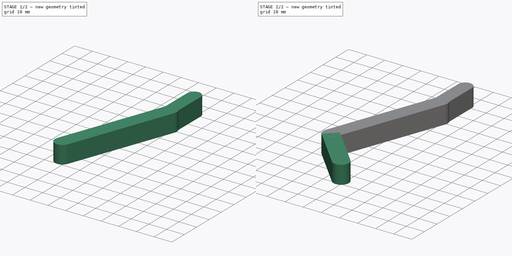
[diagram: build sequence overview — one tinted view per stage of 2, left to right]
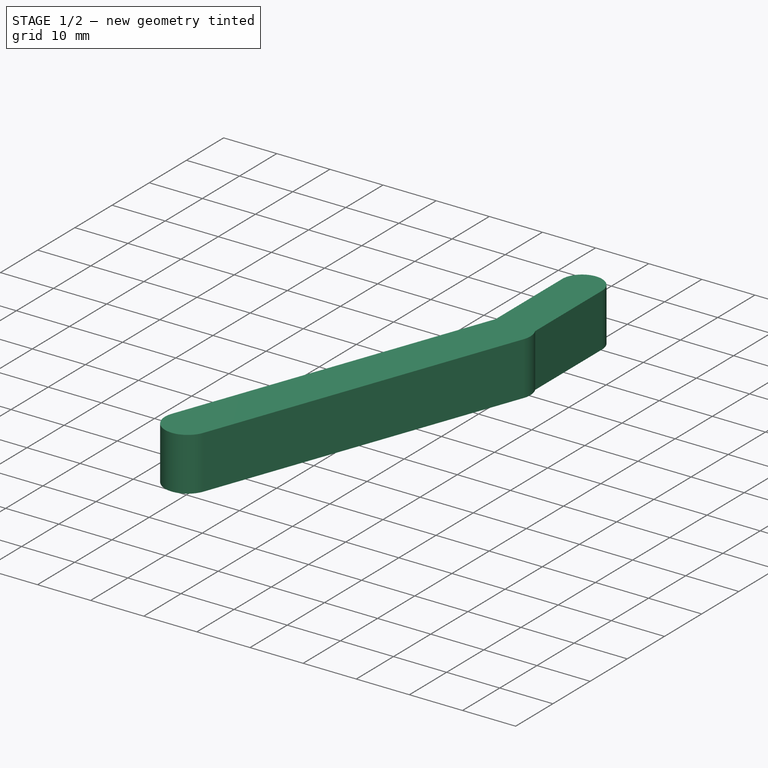
[diagram: stage 1 of 2 — iso view after this stage's code; geometry added in this stage tinted green]
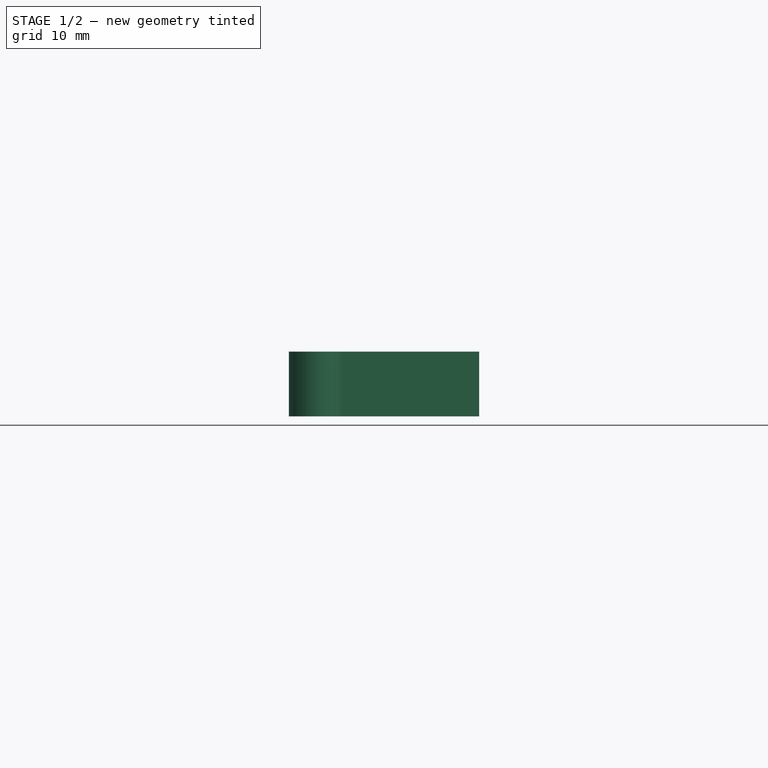
[diagram: stage 1 of 2 — front view after this stage's code; geometry added in this stage tinted green]
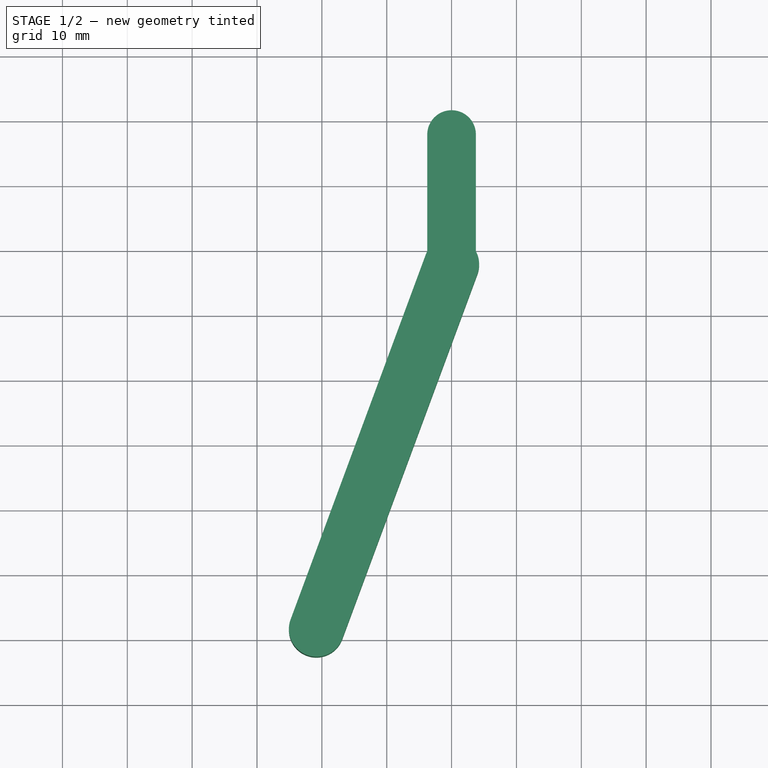
[diagram: stage 1 of 2 — top view after this stage's code; geometry added in this stage tinted green]
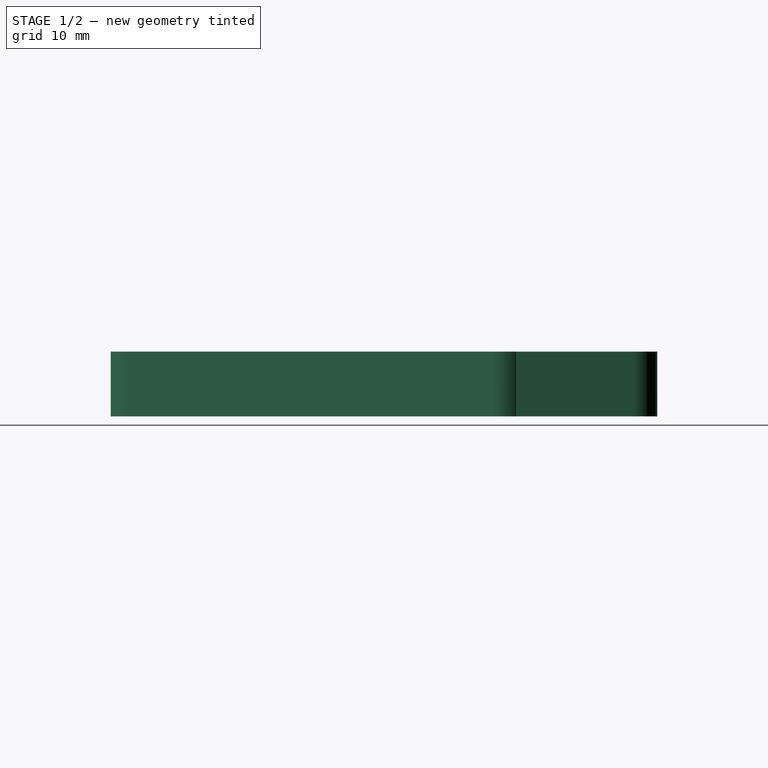
[diagram: stage 1 of 2 — right view after this stage's code; geometry added in this stage tinted green]
FCSTD DOCUMENT  (FreeCAD 0.19R)
Label: PistonAnimation
License: All rights reserved
LicenseURL: http://en.wikipedia.org/wiki/All_rights_reserved
objects: Sketcher::SketchObject×4, Part::Part2DObjectPython×3, PartDesign::Pad×3, PartDesign::Body×3
note: 16 computed .brp shape members not serialized (recipe doc carries the construction recipe); baked Part::Feature solids carry a one-line shape summary decoded from their .brp

FEATURE [PartDesign::Body] Body  label="Cam"
  Group = -> [Sketch001,Clone2D,Pad]
  Origin = -> Origin
  Tip = -> Pad
FEATURE [PartDesign::Pad] Pad001
  Direction = (1,1,1)
  Length = 10
  Length2 = 100
  Profile = -> Sketch002
  Refine = true
  Type = 0
FEATURE [PartDesign::Body] Body001  label="Rod"
  Group = -> [Sketch002,Clone2D001,Pad001]
  Origin = -> Origin001
  Tip = -> Pad001
FEATURE [PartDesign::Pad] Pad002
  Direction = (1,1,1)
  Length = 10
  Length2 = 100
  Profile = -> Sketch003
  Refine = true
  Type = 0
FEATURE [PartDesign::Body] Body002  label="link"
  Group = -> [Sketch003,Clone2D002,Pad002]
  Origin = -> Origin002
  Tip = -> Pad002
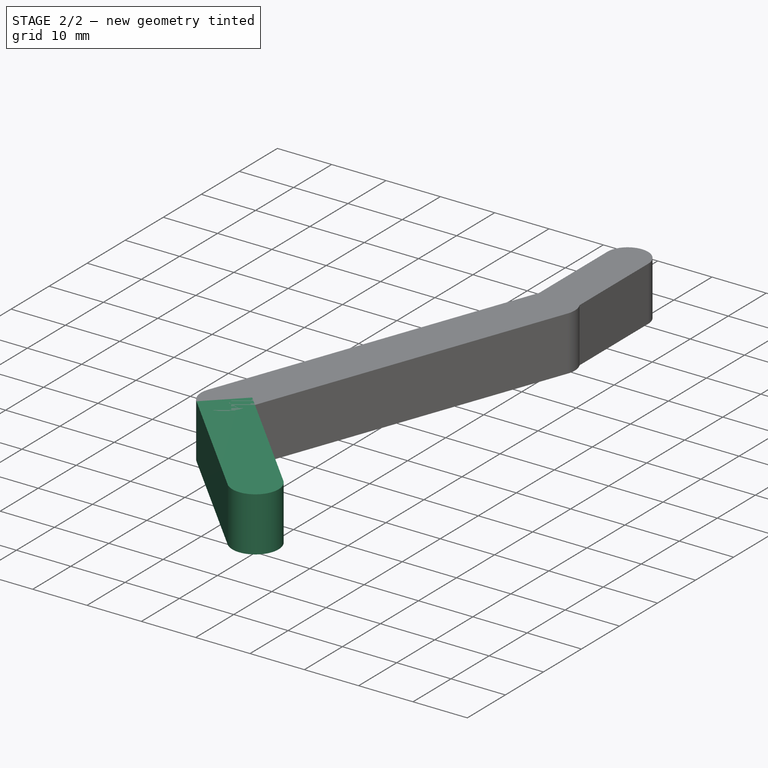
[diagram: stage 2 of 2 — iso view after this stage's code; geometry added in this stage tinted green]
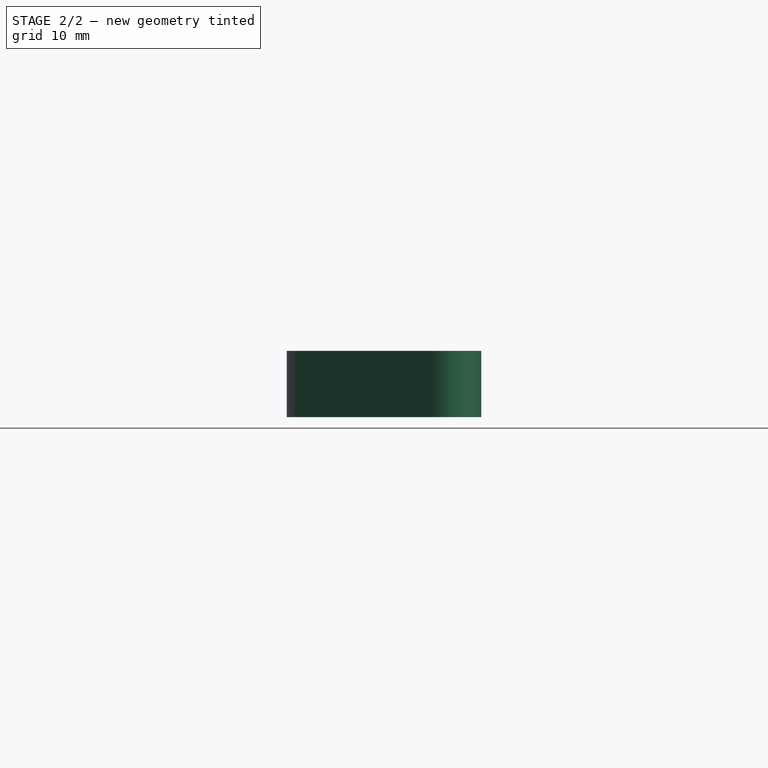
[diagram: stage 2 of 2 — front view after this stage's code; geometry added in this stage tinted green]
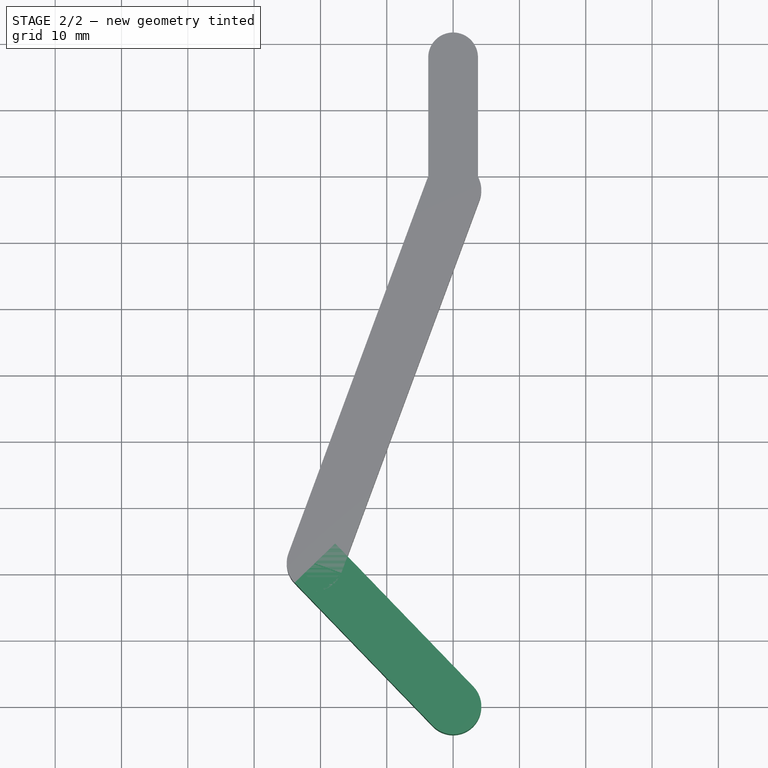
[diagram: stage 2 of 2 — top view after this stage's code; geometry added in this stage tinted green]
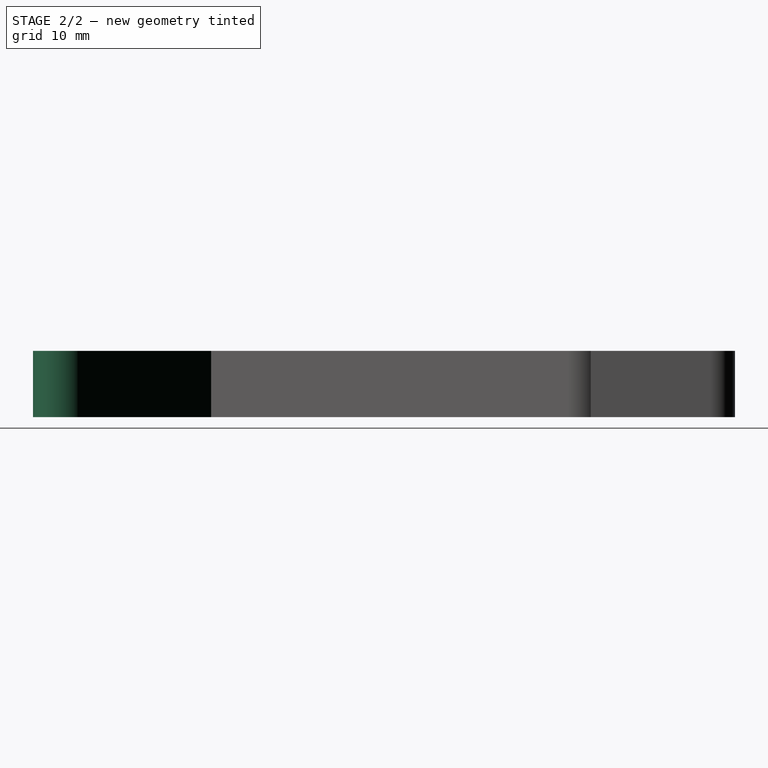
[diagram: stage 2 of 2 — right view after this stage's code; geometry added in this stage tinted green]
FEATURE [Sketcher::SketchObject] Sketch  label="Master"
  FullyConstrained = false
  sketch-geometry (4):
    g0: LineSegment StartX=0 StartY=0 StartZ=0 EndX=-20.8398 EndY=21.5802 EndZ=0
    g1: LineSegment StartX=-20.8398 StartY=21.5802 StartZ=0 EndX=0 EndY=77.8448 EndZ=0
    g2: LineSegment StartX=0 StartY=0 StartZ=0 EndX=0 EndY=119.163 EndZ=0
    g3: LineSegment StartX=0 StartY=77.8448 StartZ=0 EndX=0 EndY=97.8448 EndZ=0
  constraints (11):
    c: Coincident(g0,g-1)
    c: Distance(g0) = 30
    c: Coincident(g1,g0)
    c: Distance(g1) = 60
    c: PointOnObject(g2,g-2)
    c: Coincident(g0,g2)
    c: PointOnObject(g1,g2)
    c: Coincident(g3,g1)
    c: Distance(g3) = 20
    c: Vertical(g3)
    c: Angle(g2,g0) = 0.767945
FEATURE [Part::Part2DObjectPython] Clone2D  label="Master (2D)"  # Draft 2D object (typed FeaturePython)
  Fuse = false
  Objects = -> [Sketch]
  Scale = (1,1,1)
FEATURE [Sketcher::SketchObject] Sketch001
  ExternalGeometry = -> [Clone2D]
  FullyConstrained = true
  MapMode = 5
  Support = -> [XY_Plane]
  sketch-geometry (4):
    g0: ArcOfCircle CenterX=-20.8398 CenterY=21.5802 CenterZ=0 NormalX=0 NormalY=0 NormalZ=1 AngleXU=0 Radius=4.25 StartAngle=0.767945 EndAngle=3.90954
    g1: ArcOfCircle CenterX=0 CenterY=0 CenterZ=0 NormalX=0 NormalY=0 NormalZ=1 AngleXU=0 Radius=4.25 StartAngle=3.90954 EndAngle=7.05113
    g2: LineSegment StartX=-23.8969 StartY=18.6279 StartZ=0 EndX=-3.05719 EndY=-2.9523 EndZ=0
    g3: LineSegment StartX=-17.7826 StartY=24.5325 StartZ=0 EndX=3.05719 EndY=2.9523 EndZ=0
  constraints (8):
    c: Tangent(g0,g3) = 1.5708
    c: Tangent(g0,g2) = -1.5708
    c: Tangent(g2,g1) = -1.5708
    c: Tangent(g3,g1) = 1.5708
    c: Equal(g0,g1)
    c: Coincident(g1,g-1)
    c: Coincident(g0,g-3)
    c: Distance(g0,g0) = 8.5
FEATURE [Part::Part2DObjectPython] Clone2D001  label="Master (2D)001"  # Draft 2D object (typed FeaturePython)
  Fuse = false
  Objects = -> [Sketch]
  Scale = (1,1,1)
FEATURE [Sketcher::SketchObject] Sketch002
  ExternalGeometry = -> [Clone2D001]
  FullyConstrained = true
  MapMode = 5
  Support = -> [XY_Plane001]
  sketch-geometry (4):
    g0: ArcOfCircle CenterX=-20.8398 CenterY=21.5802 CenterZ=0 NormalX=0 NormalY=0 NormalZ=1 AngleXU=0 Radius=4.25 StartAngle=2.78687 EndAngle=5.92846
    g1: ArcOfCircle CenterX=0 CenterY=77.8448 CenterZ=0 NormalX=0 NormalY=0 NormalZ=1 AngleXU=0 Radius=4.25 StartAngle=5.92846 EndAngle=9.07006
    g2: LineSegment StartX=-16.8543 StartY=20.104 StartZ=0 EndX=3.98541 EndY=76.3686 EndZ=0
    g3: LineSegment StartX=-24.8252 StartY=23.0563 StartZ=0 EndX=-3.98541 EndY=79.3209 EndZ=0
  constraints (8):
    c: Tangent(g0,g3) = 1.5708
    c: Tangent(g0,g2) = -1.5708
    c: Tangent(g2,g1) = -1.5708
    c: Tangent(g3,g1) = 1.5708
    c: Equal(g0,g1)
    c: Coincident(g0,g-3)
    c: Coincident(g1,g-3)
    c: Distance(g1,g1) = 8.5
FEATURE [Part::Part2DObjectPython] Clone2D002  label="Master (2D)002"  # Draft 2D object (typed FeaturePython)
  Fuse = false
  Objects = -> [Sketch]
  Scale = (1,1,1)
FEATURE [Sketcher::SketchObject] Sketch003
  ExternalGeometry = -> [Clone2D002]
  FullyConstrained = true
  MapMode = 5
  Support = -> [XY_Plane002]
  sketch-geometry (4):
    g0: ArcOfCircle CenterX=0 CenterY=77.8448 CenterZ=0 NormalX=0 NormalY=0 NormalZ=1 AngleXU=0 Radius=3.75 StartAngle=3.14159 EndAngle=6.28319
    g1: ArcOfCircle CenterX=0 CenterY=97.8448 CenterZ=0 NormalX=0 NormalY=0 NormalZ=1 AngleXU=0 Radius=3.75 StartAngle=-4.4e-15 EndAngle=3.14159
    g2: LineSegment StartX=3.75 StartY=77.8448 StartZ=0 EndX=3.75 EndY=97.8448 EndZ=0
    g3: LineSegment StartX=-3.75 StartY=77.8448 StartZ=0 EndX=-3.75 EndY=97.8448 EndZ=0
  constraints (8):
    c: Tangent(g0,g3) = 1.5708
    c: Tangent(g0,g2) = -1.5708
    c: Tangent(g2,g1) = -1.5708
    c: Tangent(g3,g1) = 1.5708
    c: Vertical(g2)
    c: Distance(g1,g1) = 7.5
    c: Coincident(g1,g-3)
    c: Coincident(g0,g-3)
FEATURE [PartDesign::Pad] Pad
  Direction = (1,1,1)
  Length = 10
  Length2 = 100
  Profile = -> Sketch001
  Refine = true
  Type = 0
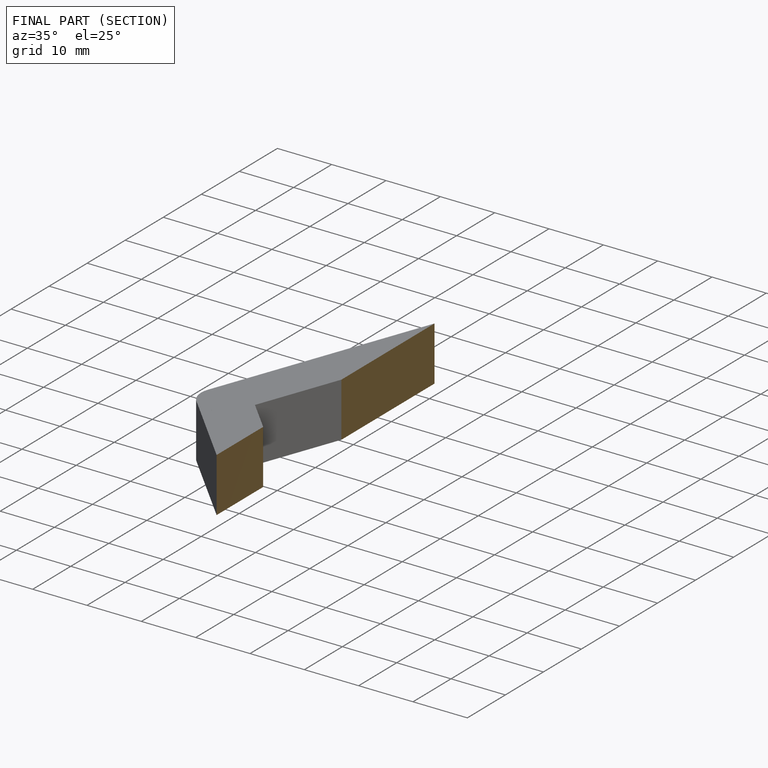
[diagram: finished part — half-section view (interior)]
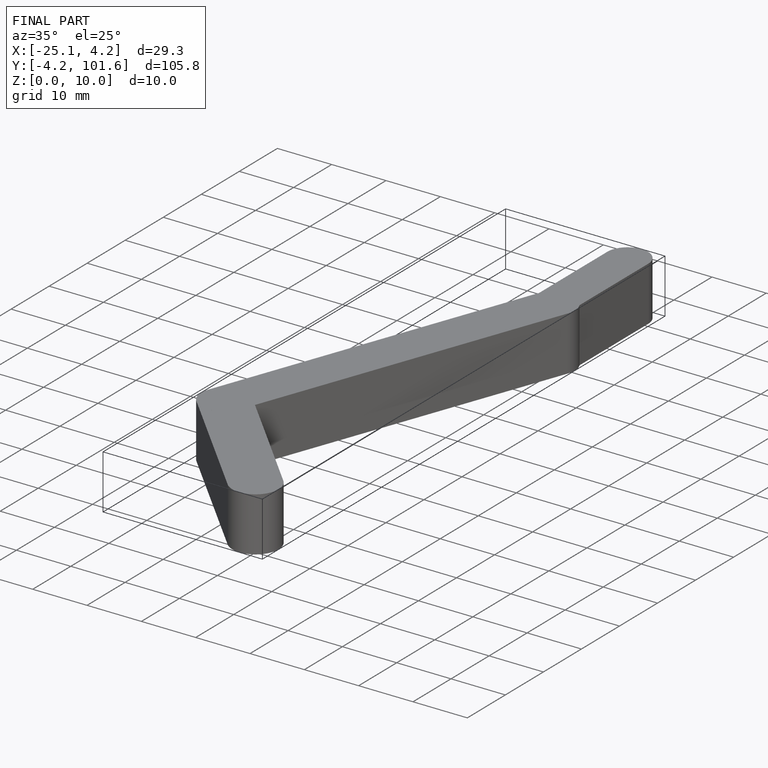
[diagram: finished part — iso view with bounding-box wireframe]
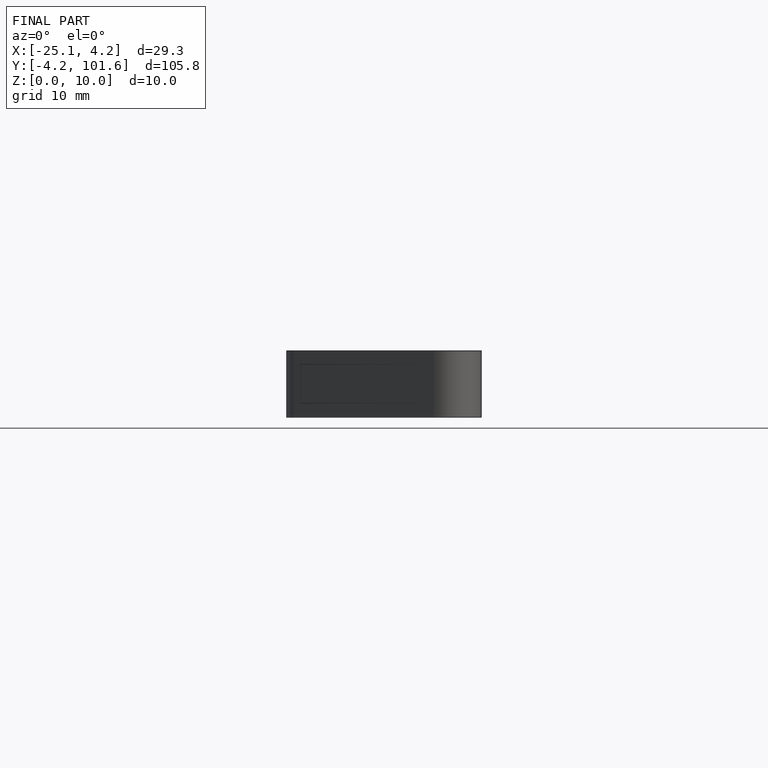
[diagram: finished part — front view with bounding-box wireframe]
